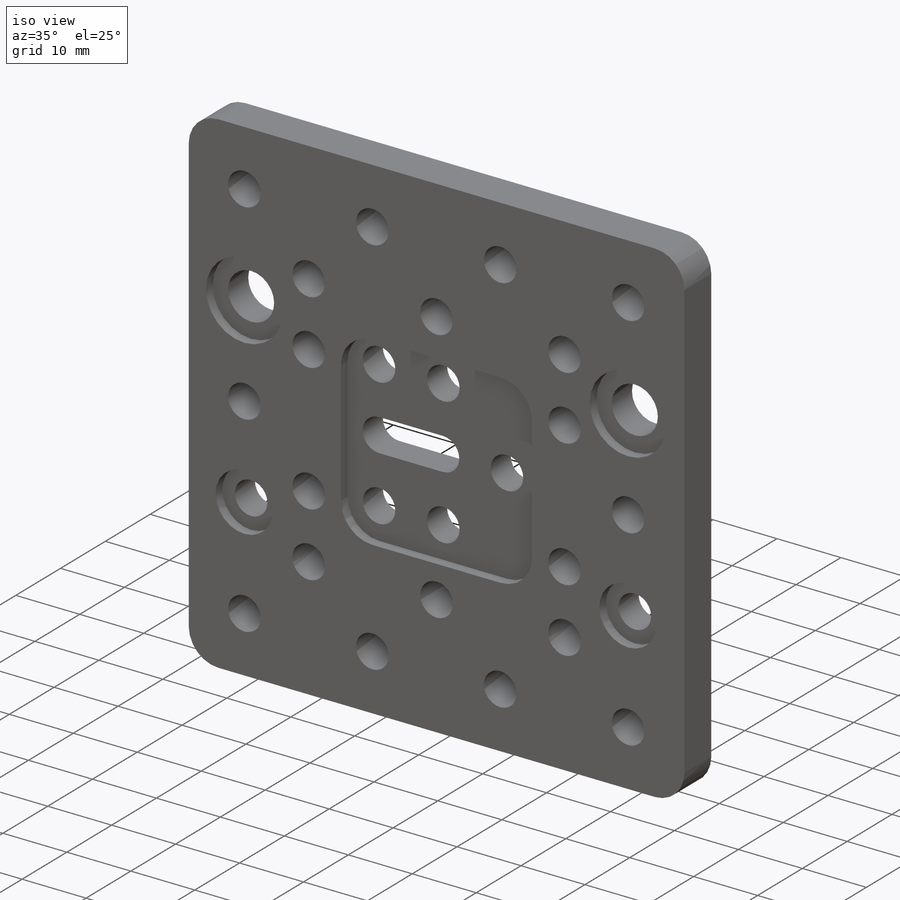
[diagram: iso view]
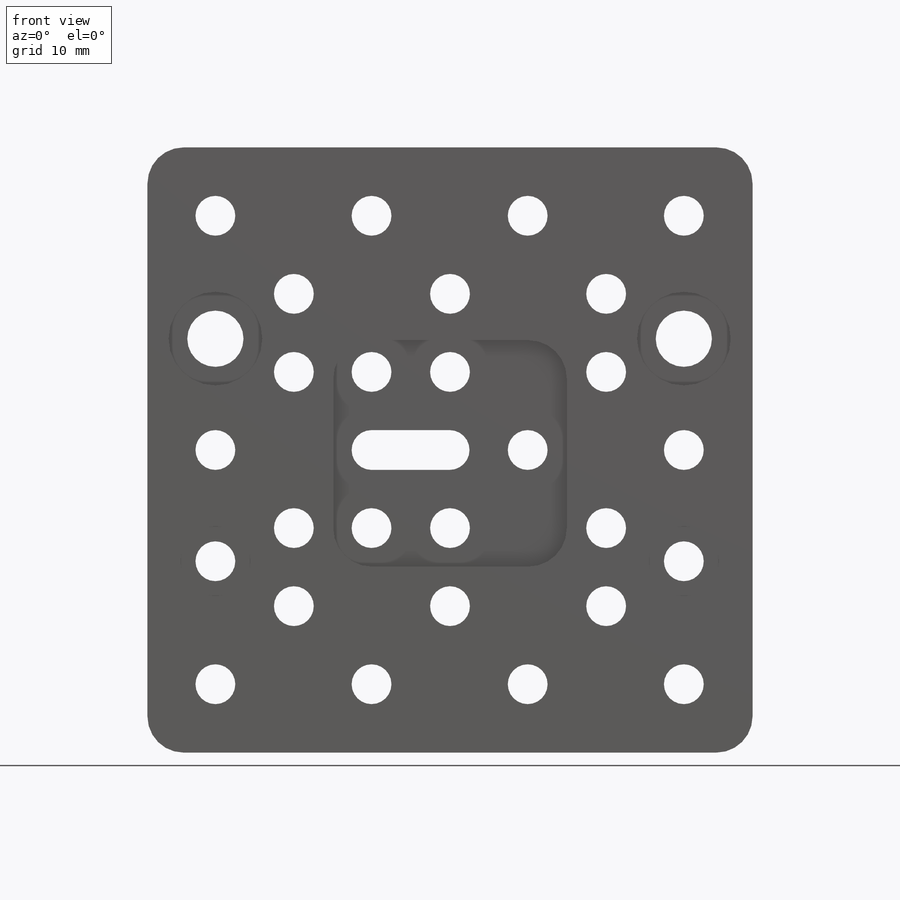
[diagram: front view]
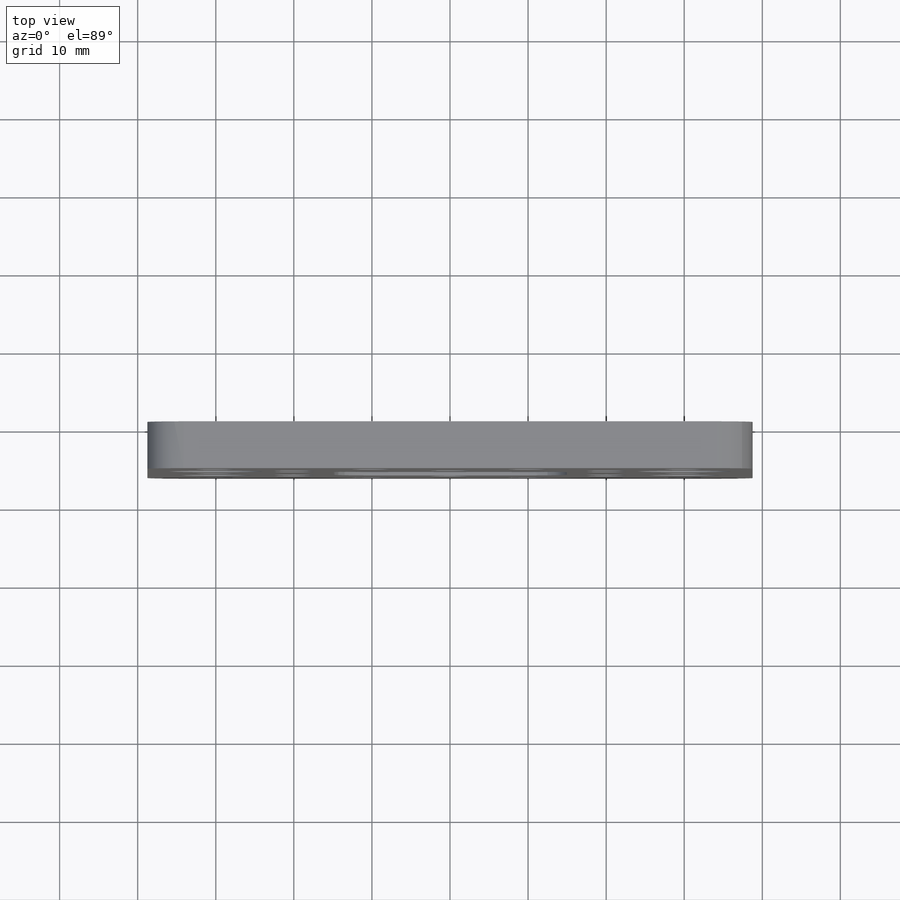
[diagram: top view]
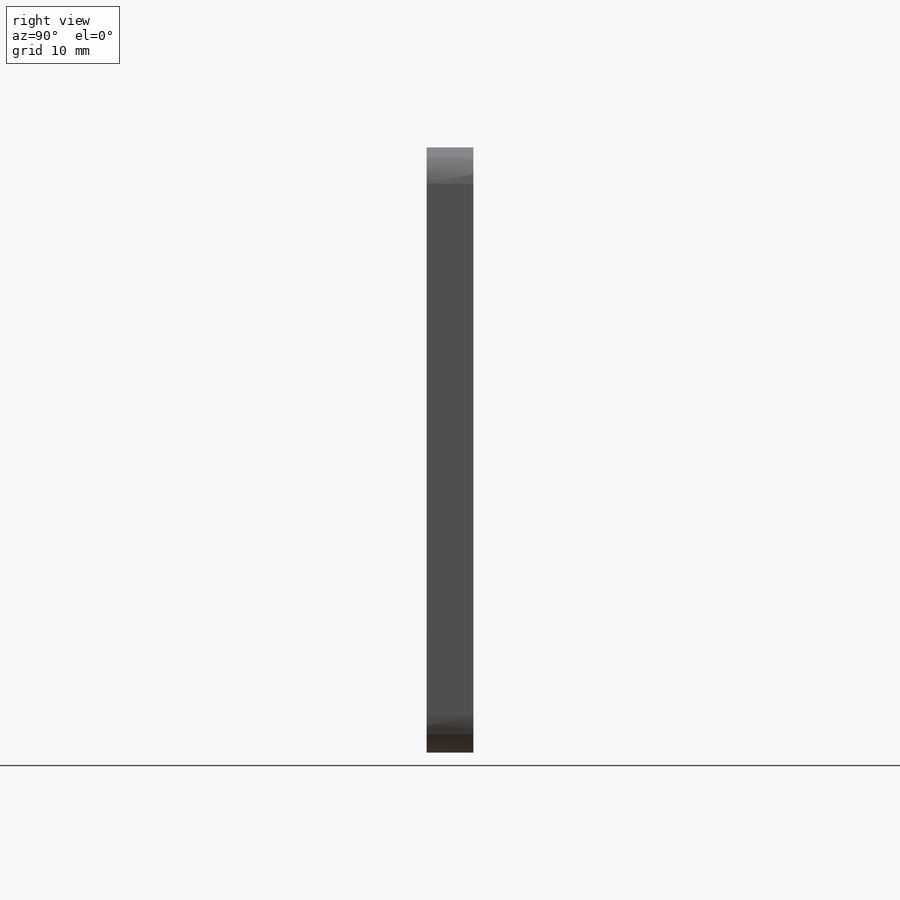
[diagram: right view]
SOLIDWORKS PART (.sldprt)
format: sldprt  version: not decoded by parser v0  size: 381,952 bytes
history: native  units: mm
features: sketch x5, cut_extrude x4, material x1, extrude x1, fillet x1 (+12 scaffold rows collapsed)
feature tree (24):
  scaffold x12  (default folders/planes/origin — collapsed)
  material  "Material <not specified>"
  sketch  "Sketch1"  dims[c1.D3=5.1mm c1.D5=5.1mm c1.D7=5.1mm c1.D8=5.1mm c1.D9=5.1mm c1.D10=5.1mm c1.D11=5.1mm c1.D12=5.1mm c1.D13=5.1mm c1.D17=5.1mm c1.D18=5.1mm c1.D19=5.1mm c1.D20=5.1mm c1.D21=5.1mm c1.D22=5.1mm c1.D23=5.1mm c1.D24=5.1mm c1.D1=77.519mm c1.D2=77.51mm c1.D4=38.76mm c2.D5=8.705mm c2.D6=0.0mm c2.D7=14.25mm c2.D8=15.75mm c2.D9=0.0mm c2.D10=14.25mm c2.D11=0.0mm c2.D12=15.75mm c2.D13=0.0mm c2.D2=77.51mm c2.D15=38.755mm c2.D16=38.7595mm c2.D18=20.0mm c2.D19=10.0mm c2.D20=0.0mm c2.D21=40.0mm c2.D22=20.0mm c2.D23=0.0mm c2.D24=10.05mm c2.D14=4.0 c2.D25=2.0 c2.D26=2.0]
  extrude  "Boss-Extrude1"  Depth=6mm
  sketch  "Sketch2"  dims[c1.D1=5.1mm c1.D2=2.55mm c1.D3=2.55mm c1.D4=5.1mm c2.D2=10.0mm c2.D3=10.0mm c2.D4=10.0mm]
  cut_extrude  "Cut-Extrude1"  Depth=6mm
  fillet  "Fillet1"  Radius=4.635mm
  sketch  "Sketch3"  dims[D1=4.921mm D2=29.902mm D3=29.0mm D4=14.951mm D5=14.95mm]
  cut_extrude  "Cut-Extrude2"  Depth=1.5mm
  sketch  "Sketch4"  dims[D1=9.0mm D2=9.0mm D3=12.0mm D4=12.0mm]
  cut_extrude  "Cut-Extrude3"  Depth=1.5mm
  sketch  "Sketch5"  dims[D1=7.2mm D2=7.2mm]
  cut_extrude  "Cut-Extrude4"  [1 undecoded]
decode coverage: 10 of 11 modeling features carry decoded parameters
note: 1 parameter value undecoded
note: suppression state not decoded; provenance and decode notes live in map.json
